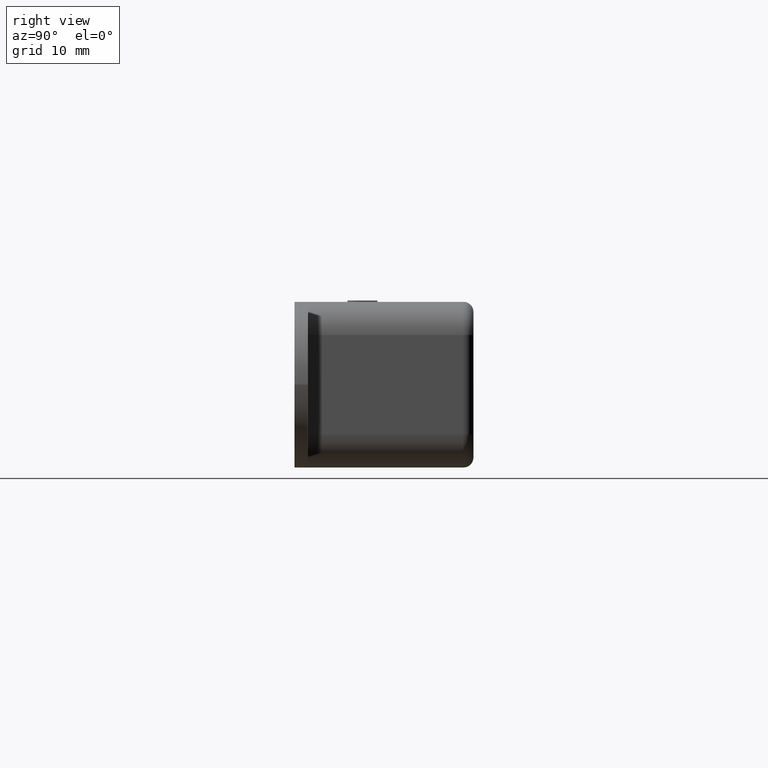
[diagram: clean part render]
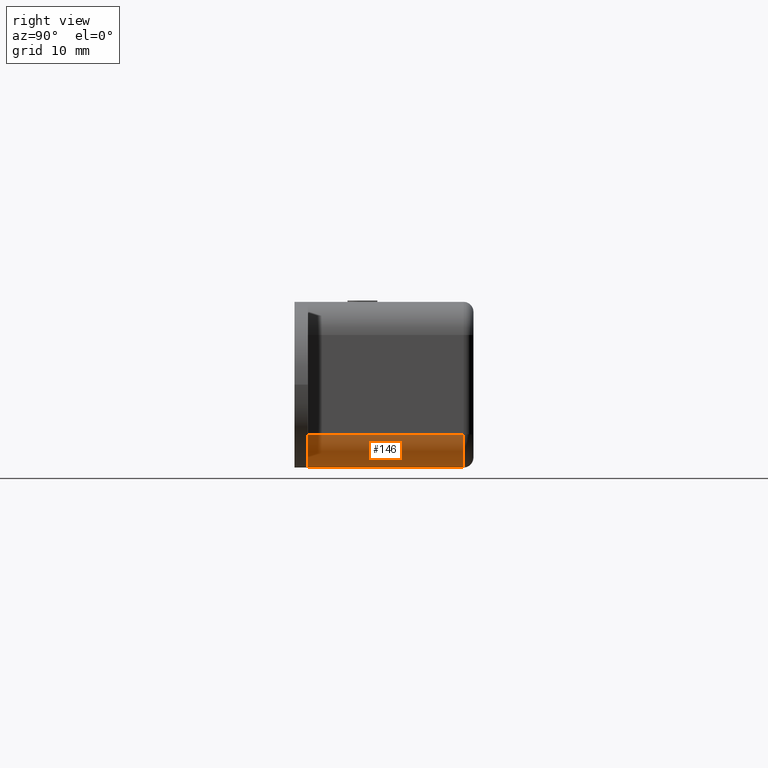
[diagram: same view with one face highlighted and labeled with its STEP entity id]
A machine part, right view. The second image highlights one B-rep face of the part: STEP entity #146.
In plain terms, the highlighted cylindrical surface (edge-blend (fillet) strip) has radius 5 mm, axis along (-0, -1, 0).
Its self-contained STEP definition (entity closure, byte-faithful):
#146 = ADVANCED_FACE( '', ( #612 ), #613, .T. );
#612 = FACE_OUTER_BOUND( '', #1352, .T. );
#613 = CYLINDRICAL_SURFACE( '', #1353, 5.00000000000000 );
#1352 = EDGE_LOOP( '', ( #2713, #2714, #2715, #2716 ) );
#1353 = AXIS2_PLACEMENT_3D( '', #2717, #2718, #2719 );
#2713 = ORIENTED_EDGE( '', *, *, #5026, .F. );
#2714 = ORIENTED_EDGE( '', *, *, #5172, .T. );
#2715 = ORIENTED_EDGE( '', *, *, #5042, .F. );
#2716 = ORIENTED_EDGE( '', *, *, #5048, .F. );
#2717 = CARTESIAN_POINT( '', ( 22.0000000000000, 2.00000000000000, -7.50000000000000 ) );
#2718 = DIRECTION( '', ( -6.93889390390723E-017, -1.00000000000000, 0.000000000000000 ) );
#2719 = DIRECTION( '', ( -1.00000000000000, 6.93889390390723E-017, 0.000000000000000 ) );
#5026 = EDGE_CURVE( '', #6215, #6217, #6218, .F. );
#5042 = EDGE_CURVE( '', #6243, #6244, #6245, .T. );
#5048 = EDGE_CURVE( '', #6217, #6243, #6254, .F. );
#5172 = EDGE_CURVE( '', #6215, #6244, #6464, .F. );
#6215 = VERTEX_POINT( '', #7970 );
#6217 = VERTEX_POINT( '', #7973 );
#6218 = LINE( '', #7974, #7975 );
#6243 = VERTEX_POINT( '', #8008 );
#6244 = VERTEX_POINT( '', #8009 );
#6245 = LINE( '', #8010, #8011 );
#6254 = CIRCLE( '', #8023, 5.00000000000000 );
#6464 = CIRCLE( '', #8326, 5.00000000000000 );
#7970 = CARTESIAN_POINT( '', ( 22.0000000000000, 25.5000000000000, -12.5000000000000 ) );
#7973 = CARTESIAN_POINT( '', ( 22.0000000000000, 2.00000000000000, -12.5000000000000 ) );
#7974 = CARTESIAN_POINT( '', ( 22.0000000000000, 50.5000000000000, -12.5000000000000 ) );
#7975 = VECTOR( '', #9584, 1000.00000000000 );
#8008 = CARTESIAN_POINT( '', ( 27.0000000000000, 2.00000000000000, -7.50000000000000 ) );
#8009 = CARTESIAN_POINT( '', ( 27.0000000000000, 25.5000000000000, -7.50000000000000 ) );
#8010 = CARTESIAN_POINT( '', ( 27.0000000000000, 2.00000000000000, -7.50000000000000 ) );
#8011 = VECTOR( '', #9614, 1000.00000000000 );
#8023 = AXIS2_PLACEMENT_3D( '', #9624, #9625, #9626 );
#8326 = AXIS2_PLACEMENT_3D( '', #9810, #9811, #9812 );
#9584 = DIRECTION( '', ( 6.93889390390723E-017, 1.00000000000000, 0.000000000000000 ) );
#9614 = DIRECTION( '', ( 6.93889390390723E-017, 1.00000000000000, 0.000000000000000 ) );
#9624 = CARTESIAN_POINT( '', ( 22.0000000000000, 2.00000000000000, -7.50000000000000 ) );
#9625 = DIRECTION( '', ( 0.000000000000000, 1.00000000000000, 0.000000000000000 ) );
#9626 = DIRECTION( '', ( 0.000000000000000, 0.000000000000000, 1.00000000000000 ) );
#9810 = CARTESIAN_POINT( '', ( 22.0000000000000, 25.5000000000000, -7.50000000000000 ) );
#9811 = DIRECTION( '', ( 0.000000000000000, 1.00000000000000, 0.000000000000000 ) );
#9812 = DIRECTION( '', ( 0.000000000000000, 0.000000000000000, 1.00000000000000 ) );